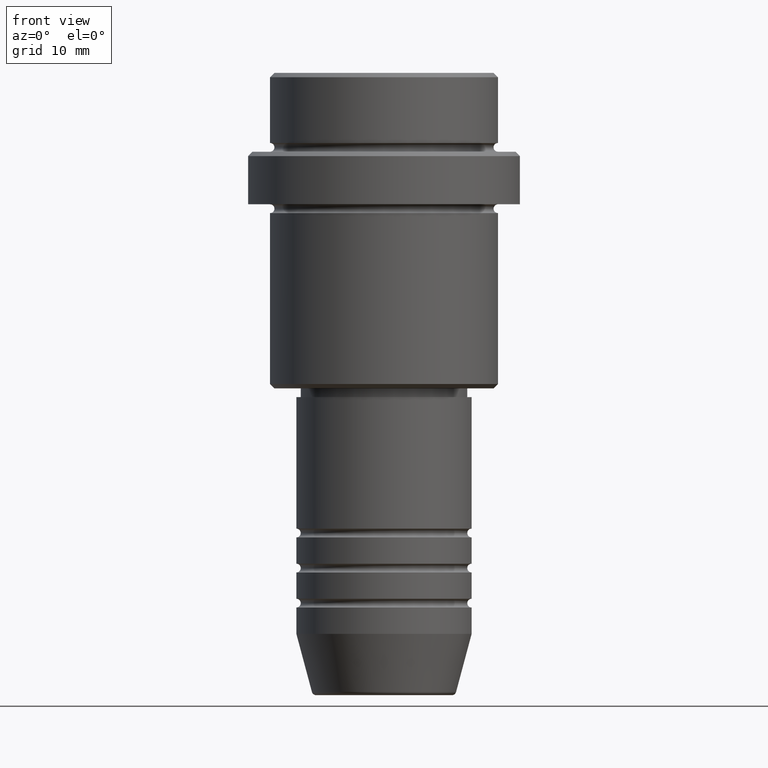
[diagram: clean part render]
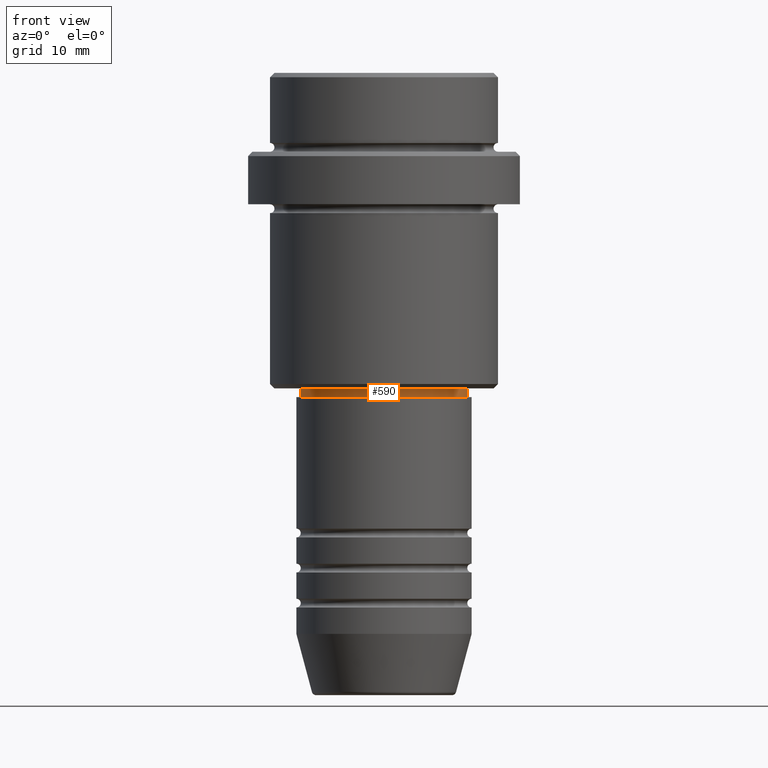
[diagram: same view with one face highlighted and labeled with its STEP entity id]
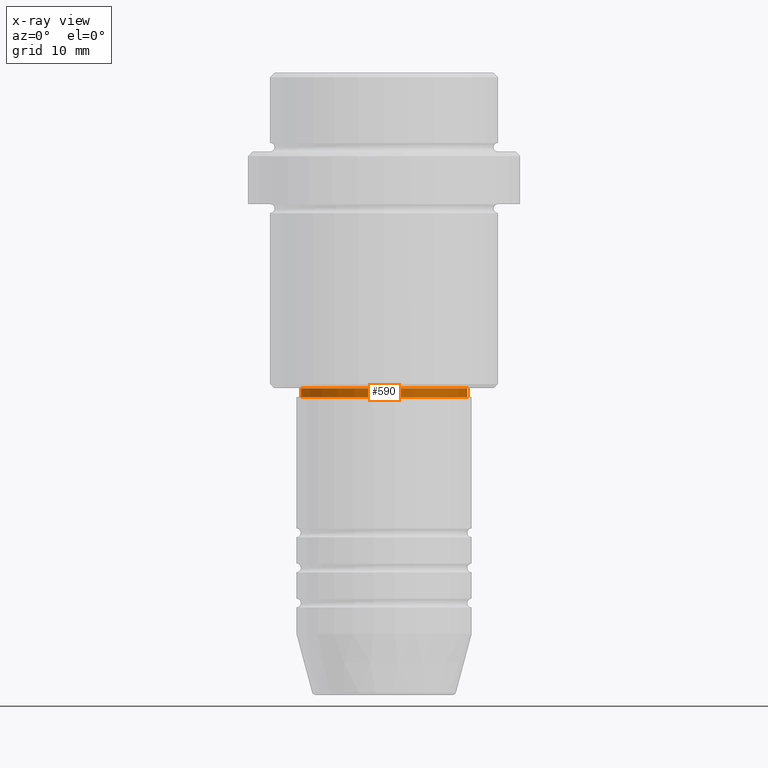
[diagram: x-ray of the same camera — body ghosted, the highlighted face saturated]
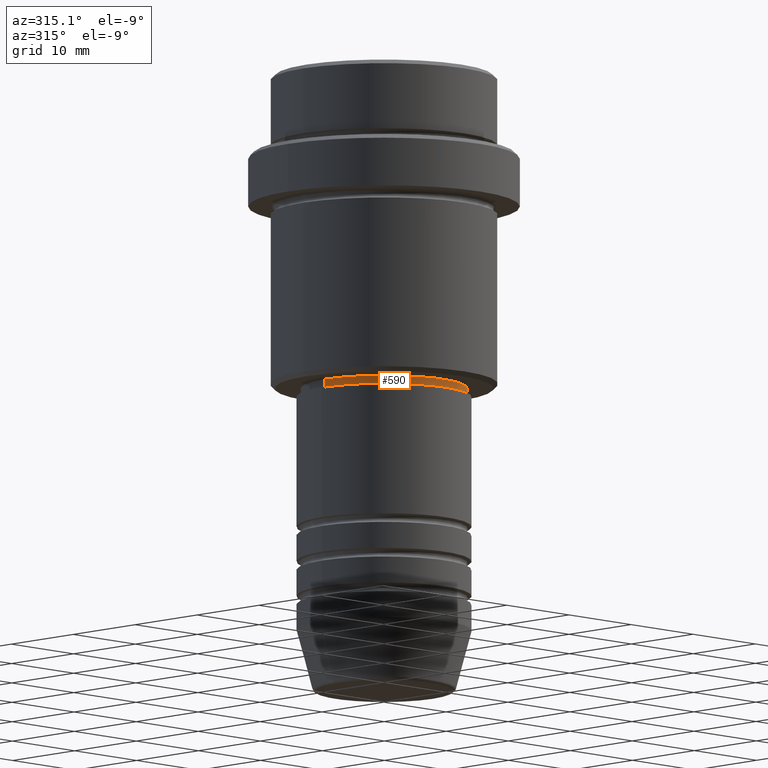
[diagram: same view with one face highlighted and labeled with its STEP entity id]
A machine part, front view. The second image highlights one B-rep face of the part: STEP entity #590.
The next image is the same camera in x-ray: the body ghosted, the highlighted face saturated — about 0% of this face is hidden behind the body in this view.
A second angle (auxiliary view) of the same face is appended — the face is thin or edge-on in the first view.
In plain terms, the highlighted cylindrical surface (partial cylindrical patch) has radius 9.5 mm, axis along (-0, -0, 1).
Its self-contained STEP definition (entity closure, byte-faithful):
#6 = EDGE_CURVE ( 'NONE', #1375, #989, #301, .T. ) ;
#19 = CYLINDRICAL_SURFACE ( 'NONE', #189, 9.499999999999998224 ) ;
#68 = DIRECTION ( 'NONE',  ( -0.000000000000000000, -0.000000000000000000, 1.000000000000000000 ) ) ;
#112 = CARTESIAN_POINT ( 'NONE',  ( 9.499999999999998224, 0.000000000000000000, -37.00000000000000000 ) ) ;
#119 = DIRECTION ( 'NONE',  ( -0.000000000000000000, -0.000000000000000000, 1.000000000000000000 ) ) ;
#163 = DIRECTION ( 'NONE',  ( -0.000000000000000000, -0.000000000000000000, 1.000000000000000000 ) ) ;
#189 = AXIS2_PLACEMENT_3D ( 'NONE', #1331, #119, #339 ) ;
#240 = DIRECTION ( 'NONE',  ( -0.000000000000000000, -0.000000000000000000, 1.000000000000000000 ) ) ;
#301 = CIRCLE ( 'NONE', #1317, 9.499999999999996447 ) ;
#326 = EDGE_CURVE ( 'NONE', #1168, #989, #444, .T. ) ;
#337 = ORIENTED_EDGE ( 'NONE', *, *, #326, .T. ) ;
#339 = DIRECTION ( 'NONE',  ( 1.000000000000000000, 0.000000000000000000, 0.000000000000000000 ) ) ;
#444 = LINE ( 'NONE', #1151, #1087 ) ;
#590 = ADVANCED_FACE ( 'NONE', ( #876 ), #19, .T. ) ;
#592 = DIRECTION ( 'NONE',  ( 1.000000000000000000, 0.000000000000000000, 0.000000000000000000 ) ) ;
#623 = VECTOR ( 'NONE', #68, 1000.000000000000000 ) ;
#627 = CARTESIAN_POINT ( 'NONE',  ( 9.499999999999996447, 0.000000000000000000, -36.00000000000000000 ) ) ;
#645 = ORIENTED_EDGE ( 'NONE', *, *, #1359, .F. ) ;
#765 = AXIS2_PLACEMENT_3D ( 'NONE', #805, #163, #592 ) ;
#805 = CARTESIAN_POINT ( 'NONE',  ( 0.000000000000000000, 0.000000000000000000, -37.00000000000000000 ) ) ;
#842 = CARTESIAN_POINT ( 'NONE',  ( -9.499999999999996447, 1.163414459189985091E-15, -36.00000000000000000 ) ) ;
#861 = CARTESIAN_POINT ( 'NONE',  ( -9.499999999999998224, 1.163414459189985288E-15, -37.00000000000000000 ) ) ;
#873 = EDGE_CURVE ( 'NONE', #1153, #1168, #1296, .T. ) ;
#876 = FACE_OUTER_BOUND ( 'NONE', #1264, .T. ) ;
#989 = VERTEX_POINT ( 'NONE', #627 ) ;
#1087 = VECTOR ( 'NONE', #1139, 1000.000000000000000 ) ;
#1139 = DIRECTION ( 'NONE',  ( -0.000000000000000000, -0.000000000000000000, 1.000000000000000000 ) ) ;
#1151 = CARTESIAN_POINT ( 'NONE',  ( 9.499999999999998224, 0.000000000000000000, 0.000000000000000000 ) ) ;
#1153 = VERTEX_POINT ( 'NONE', #861 ) ;
#1168 = VERTEX_POINT ( 'NONE', #112 ) ;
#1202 = ORIENTED_EDGE ( 'NONE', *, *, #873, .T. ) ;
#1228 = CARTESIAN_POINT ( 'NONE',  ( 0.000000000000000000, 0.000000000000000000, -36.00000000000000000 ) ) ;
#1264 = EDGE_LOOP ( 'NONE', ( #645, #1202, #337, #1403 ) ) ;
#1296 = CIRCLE ( 'NONE', #765, 9.499999999999998224 ) ;
#1309 = DIRECTION ( 'NONE',  ( 1.000000000000000000, 0.000000000000000000, 0.000000000000000000 ) ) ;
#1317 = AXIS2_PLACEMENT_3D ( 'NONE', #1228, #240, #1309 ) ;
#1331 = CARTESIAN_POINT ( 'NONE',  ( 0.000000000000000000, 0.000000000000000000, 0.000000000000000000 ) ) ;
#1359 = EDGE_CURVE ( 'NONE', #1153, #1375, #1374, .T. ) ;
#1374 = LINE ( 'NONE', #1394, #623 ) ;
#1375 = VERTEX_POINT ( 'NONE', #842 ) ;
#1394 = CARTESIAN_POINT ( 'NONE',  ( -9.499999999999998224, 1.163414459189985288E-15, 0.000000000000000000 ) ) ;
#1403 = ORIENTED_EDGE ( 'NONE', *, *, #6, .F. ) ;